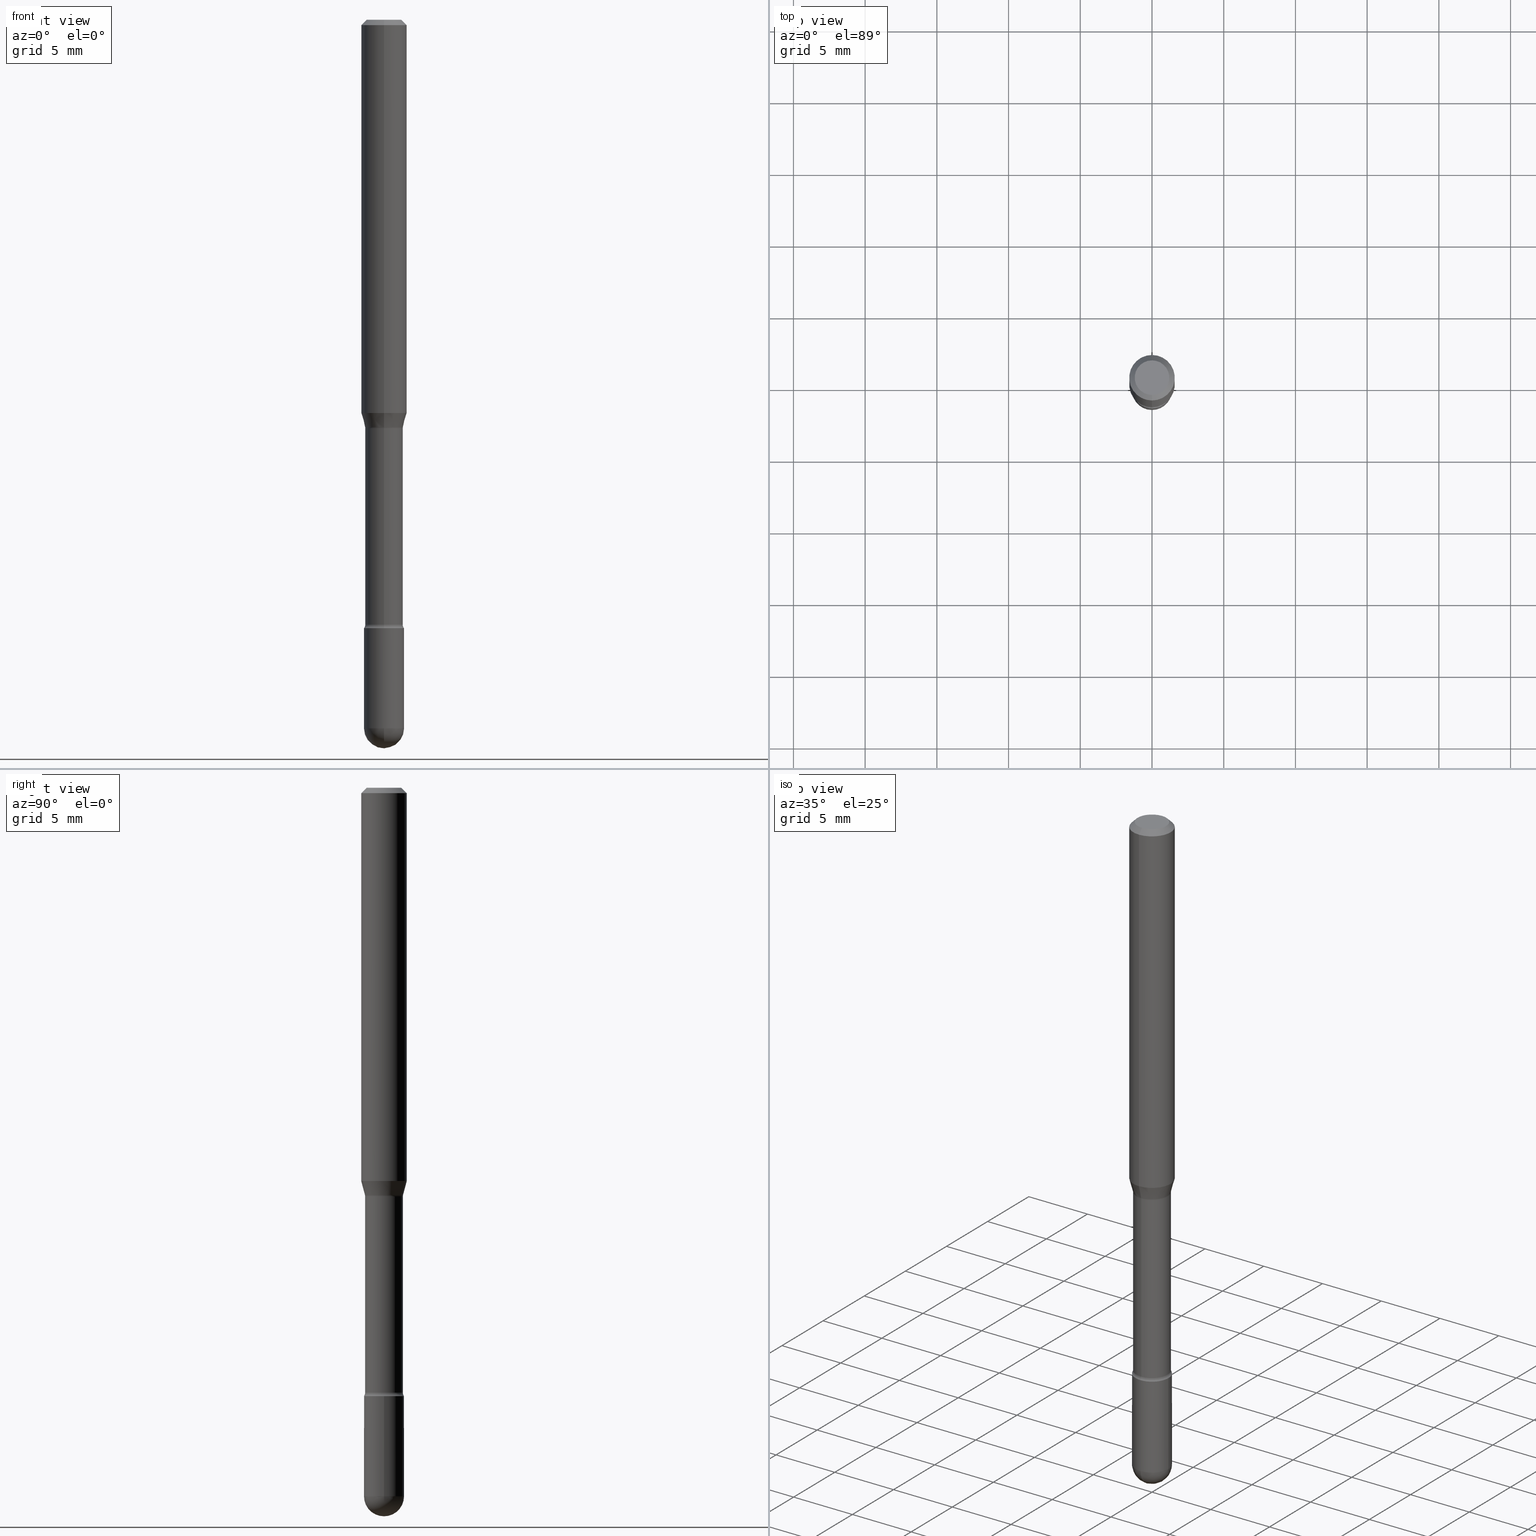
[diagram: canonical four-view strip — front | top / right | iso, engineering-drawing reading convention]
A machine part, canonical four-view strip (front | top / right | iso — engineering-drawing reading convention). The complete STEP part file that produces these views, byte-faithful:
ISO-10303-21;
HEADER;
FILE_DESCRIPTION (( 'STEP AP203' ),
    '1' );
FILE_NAME ('03775.STEP',
    '2024-04-09T20:25:13',
    ( '' ),
    ( '' ),
    'SwSTEP 2.0',
    'SolidWorks 2023',
    '' );
FILE_SCHEMA (( 'CONFIG_CONTROL_DESIGN' ));
ENDSEC;

DATA;
#1 = DIRECTION ( 'NONE',  ( -2.445468806185136597E-29, 3.491481338843145583E-15, 1.000000000000000000 ) ) ;
#2 = EDGE_CURVE ( 'NONE', #113, #246, #393, .T. ) ;
#3 = DIRECTION ( 'NONE',  ( -6.982962677686265133E-15, -1.000000000000000000, 3.491568880627540684E-15 ) ) ;
#4 = DIRECTION ( 'NONE',  ( 1.000000000000000000, -6.982962677686262766E-15, 0.000000000000000000 ) ) ;
#5 = CARTESIAN_POINT ( 'NONE',  ( -0.05500000000000000028, 3.907985046680551042E-16, -2.705414299640198362E-30 ) ) ;
#6 = VERTEX_POINT ( 'NONE', #441 ) ;
#7 = CARTESIAN_POINT ( 'NONE',  ( 4.893289319665516092E-29, -6.979594898988634750E-15, -2.000000000000000000 ) ) ;
#8 = ORGANIZATION ( 'UNSPECIFIED', 'UNSPECIFIED', '' ) ;
#9 = CYLINDRICAL_SURFACE ( 'NONE', #335, 0.05500000000000000028 ) ;
#10 = EDGE_CURVE ( 'NONE', #390, #157, #178, .T. ) ;
#11 = ORIENTED_EDGE ( 'NONE', *, *, #413, .T. ) ;
#12 = CARTESIAN_POINT ( 'NONE',  ( -4.657636106016465025E-16, -0.06670000000000392282, -1.121974787463810408 ) ) ;
#13 = DIRECTION ( 'NONE',  ( 2.445407676083819295E-29, -3.491568880627540684E-15, -1.000000000000000000 ) ) ;
#14 = EDGE_LOOP ( 'NONE', ( #30, #283, #460, #65 ) ) ;
#15 = DIRECTION ( 'NONE',  ( -2.445407676083819856E-29, 3.491568880627540289E-15, 1.000000000000000000 ) ) ;
#16 = CARTESIAN_POINT ( 'NONE',  ( 4.739320047520142042E-16, 0.06669999999999608187, -1.121974787463811074 ) ) ;
#17 = EDGE_CURVE ( 'NONE', #66, #246, #468, .T. ) ;
#18 = PERSON_AND_ORGANIZATION_ROLE ( 'classification_officer' ) ;
#19 = AXIS2_PLACEMENT_3D ( 'NONE', #26, #501, #150 ) ;
#20 = AXIS2_PLACEMENT_3D ( 'NONE', #67, #242, #28 ) ;
#21 = CARTESIAN_POINT ( 'NONE',  ( -3.610191704363525413E-16, -0.05170000000000391643, -1.121974787463810408 ) ) ;
#22 = COORDINATED_UNIVERSAL_TIME_OFFSET ( 5, 0, .BEHIND. ) ;
#23 = DIRECTION ( 'NONE',  ( -2.445407676083819856E-29, 3.491568880627540289E-15, 1.000000000000000000 ) ) ;
#24 = EDGE_CURVE ( 'NONE', #478, #147, #161, .T. ) ;
#25 = SECURITY_CLASSIFICATION_LEVEL ( 'unclassified' ) ;
#26 = CARTESIAN_POINT ( 'NONE',  ( 2.734191986442359264E-29, -3.903896984903434691E-15, -1.118092501787272930 ) ) ;
#27 = EDGE_LOOP ( 'NONE', ( #299, #495, #370, #483 ) ) ;
#28 = DIRECTION ( 'NONE',  ( 6.982962677686266711E-15, 1.000000000000000000, -4.966996352116838343E-15 ) ) ;
#29 = AXIS2_PLACEMENT_3D ( 'NONE', #167, #430, #334 ) ;
#30 = ORIENTED_EDGE ( 'NONE', *, *, #10, .F. ) ;
#31 = FACE_OUTER_BOUND ( 'NONE', #287, .T. ) ;
#32 = FACE_OUTER_BOUND ( 'NONE', #536, .T. ) ;
#33 = ADVANCED_FACE ( 'NONE', ( #341 ), #168, .F. ) ;
#34 = EDGE_CURVE ( 'NONE', #412, #555, #100, .T. ) ;
#35 = DIRECTION ( 'NONE',  ( -2.445407676083819856E-29, 3.491568880627540289E-15, 1.000000000000000000 ) ) ;
#36 = CIRCLE ( 'NONE', #546, 0.05221111260566397433 ) ;
#37 = AXIS2_PLACEMENT_3D ( 'NONE', #423, #472, #42 ) ;
#38 = CYLINDRICAL_SURFACE ( 'NONE', #29, 0.05500000000000000028 ) ;
#39 = EDGE_CURVE ( 'NONE', #83, #457, #446, .T. ) ;
#40 = DIRECTION ( 'NONE',  ( -2.445407676083819856E-29, 3.491568880627540289E-15, 1.000000000000000000 ) ) ;
#41 = ORIENTED_EDGE ( 'NONE', *, *, #515, .T. ) ;
#42 = DIRECTION ( 'NONE',  ( -6.982962677686263555E-15, -1.000000000000000000, 0.000000000000000000 ) ) ;
#43 = CIRCLE ( 'NONE', #435, 0.05500000000000000028 ) ;
#44 = DIRECTION ( 'NONE',  ( -2.445468806185136597E-29, 3.491481338843145583E-15, 1.000000000000000000 ) ) ;
#45 = DIRECTION ( 'NONE',  ( -6.982962677686266711E-15, -1.000000000000000000, 0.000000000000000000 ) ) ;
#46 = DIRECTION ( 'NONE',  ( 1.000000000000000000, -7.105427357601001070E-15, 4.926316580619742724E-29 ) ) ;
#47 = DIRECTION ( 'NONE',  ( -2.445407676083820136E-29, 3.491568880627540684E-15, 1.000000000000000000 ) ) ;
#48 = CARTESIAN_POINT ( 'NONE',  ( 4.756436828030090255E-29, -6.790931204049917095E-15, -1.944999999999999840 ) ) ;
#49 = CARTESIAN_POINT ( 'NONE',  ( -3.610191704363799542E-16, -0.05170000000000000984, 6.585875100196899420E-16 ) ) ;
#50 = CIRCLE ( 'NONE', #108, 0.05500000000000000028 ) ;
#51 = PLANE ( 'NONE',  #308 ) ;
#52 = ORIENTED_EDGE ( 'NONE', *, *, #232, .T. ) ;
#53 = DIRECTION ( 'NONE',  ( -2.445407676083819856E-29, 3.491568880627540289E-15, 1.000000000000000000 ) ) ;
#54 = ORIENTED_EDGE ( 'NONE', *, *, #2, .T. ) ;
#55 = ORIENTED_EDGE ( 'NONE', *, *, #310, .F. ) ;
#56 = CALENDAR_DATE ( 2024, 9, 4 ) ;
#57 = DIRECTION ( 'NONE',  ( -7.105427357601001070E-15, -1.000000000000000000, 0.000000000000000000 ) ) ;
#58 = DATE_AND_TIME ( #56, #190 ) ;
#59 = AXIS2_PLACEMENT_3D ( 'NONE', #549, #273, #537 ) ;
#60 = AXIS2_PLACEMENT_3D ( 'NONE', #12, #224, #45 ) ;
#61 = DIRECTION ( 'NONE',  ( -2.445407676083819856E-29, 3.491568880627540289E-15, 1.000000000000000000 ) ) ;
#62 = EDGE_CURVE ( 'NONE', #457, #83, #511, .T. ) ;
#63 = APPROVAL_DATE_TIME ( #58, #254 ) ;
#64 = SPHERICAL_SURFACE ( 'NONE', #20, 0.05500000000000004191 ) ;
#65 = ORIENTED_EDGE ( 'NONE', *, *, #72, .T. ) ;
#66 = VERTEX_POINT ( 'NONE', #188 ) ;
#67 = CARTESIAN_POINT ( 'NONE',  ( 4.756436828030090255E-29, -6.790931204049917095E-15, -1.944999999999999840 ) ) ;
#68 = CARTESIAN_POINT ( 'NONE',  ( -3.610191704363393772E-16, -0.05170000000000580381, -1.660613307291702423 ) ) ;
#69 = AXIS2_PLACEMENT_3D ( 'NONE', #48, #528, #185 ) ;
#70 = CC_DESIGN_APPROVAL ( #198, ( #127 ) ) ;
#71 = CARTESIAN_POINT ( 'NONE',  ( 4.083932906329177803E-29, -5.830773835868053056E-15, -1.669999999999999929 ) ) ;
#72 = EDGE_CURVE ( 'NONE', #139, #157, #274, .T. ) ;
#73 = DIRECTION ( 'NONE',  ( 4.937700262164548042E-15, 0.7071067811865451302, -0.7071067811865499042 ) ) ;
#74 = ORIENTED_EDGE ( 'NONE', *, *, #535, .T. ) ;
#75 = PLANE ( 'NONE',  #383 ) ;
#76 = ORIENTED_EDGE ( 'NONE', *, *, #488, .T. ) ;
#77 = AXIS2_PLACEMENT_3D ( 'NONE', #400, #347, #183 ) ;
#78 = APPROVAL_PERSON_ORGANIZATION ( #401, #198, #203 ) ;
#79 = LOCAL_TIME ( 16, 25, 13.00000000000000000, #499 ) ;
#80 = DIRECTION ( 'NONE',  ( -2.445407676083819856E-29, 3.491568880627540289E-15, 1.000000000000000000 ) ) ;
#81 = DIRECTION ( 'NONE',  ( -6.982962677686265922E-15, -1.000000000000000000, 3.491568880627540684E-15 ) ) ;
#82 = ORIENTED_EDGE ( 'NONE', *, *, #121, .T. ) ;
#83 = VERTEX_POINT ( 'NONE', #523 ) ;
#84 = CARTESIAN_POINT ( 'NONE',  ( 4.440892098500891416E-16, 0.06249999999999995143, -0.01500000000000030129 ) ) ;
#85 = AXIS2_PLACEMENT_3D ( 'NONE', #71, #381, #471 ) ;
#86 =( NAMED_UNIT ( * ) PLANE_ANGLE_UNIT ( ) SI_UNIT ( $, .RADIAN. ) );
#87 = ORIENTED_EDGE ( 'NONE', *, *, #163, .T. ) ;
#88 = ADVANCED_FACE ( 'NONE', ( #136 ), #51, .F. ) ;
#89 = DIRECTION ( 'NONE',  ( -6.982962677686266711E-15, -1.000000000000000000, 2.642019336232363246E-15 ) ) ;
#90 = CARTESIAN_POINT ( 'NONE',  ( -4.364351673553652919E-16, -0.06250000000000377476, -1.079693851278255456 ) ) ;
#91 = VERTEX_POINT ( 'NONE', #90 ) ;
#92 = CC_DESIGN_PERSON_AND_ORGANIZATION_ASSIGNMENT ( #276, #111, ( #127 ) ) ;
#93 = DIRECTION ( 'NONE',  ( -1.000000000000000000, 7.105427357601001070E-15, -4.926315508542082329E-29 ) ) ;
#94 = EDGE_CURVE ( 'NONE', #478, #336, #403, .T. ) ;
#95 = ORIENTED_EDGE ( 'NONE', *, *, #345, .T. ) ;
#96 = AXIS2_PLACEMENT_3D ( 'NONE', #313, #23, #149 ) ;
#97 = CARTESIAN_POINT ( 'NONE',  ( 4.060876528658069036E-29, -5.798145746495687902E-15, -1.660613307291702645 ) ) ;
#98 = CIRCLE ( 'NONE', #284, 0.06250000000000000000 ) ;
#99 = ADVANCED_FACE ( 'NONE', ( #219 ), #9, .T. ) ;
#100 = LINE ( 'NONE', #5, #365 ) ;
#101 = VERTEX_POINT ( 'NONE', #532 ) ;
#102 = APPROVAL_DATE_TIME ( #196, #429 ) ;
#103 = DIRECTION ( 'NONE',  ( 1.000000000000000000, -6.982962677686262766E-15, 0.000000000000000000 ) ) ;
#104 = EDGE_LOOP ( 'NONE', ( #297, #52, #491, #374 ) ) ;
#105 = EDGE_CURVE ( 'NONE', #316, #6, #211, .T. ) ;
#106 = CALENDAR_DATE ( 2024, 9, 4 ) ;
#107 = AXIS2_PLACEMENT_3D ( 'NONE', #525, #46, #138 ) ;
#108 = AXIS2_PLACEMENT_3D ( 'NONE', #379, #561, #126 ) ;
#109 = CARTESIAN_POINT ( 'NONE',  ( 3.668111514125750155E-31, -5.237353320941339203E-17, -0.01500000000000008271 ) ) ;
#110 = ADVANCED_FACE ( 'NONE', ( #282 ), #376, .F. ) ;
#111 = PERSON_AND_ORGANIZATION_ROLE ( 'creator' ) ;
#112 = FACE_OUTER_BOUND ( 'NONE', #380, .T. ) ;
#113 = VERTEX_POINT ( 'NONE', #277 ) ;
#114 = MANIFOLD_SOLID_BREP ( 'Body-Move/Copy2[2]', #521 ) ;
#115 = DIRECTION ( 'NONE',  ( -6.982962677686266711E-15, -1.000000000000000000, 2.616155696869698836E-15 ) ) ;
#116 = AXIS2_PLACEMENT_3D ( 'NONE', #327, #368, #402 ) ;
#117 = PRODUCT_DEFINITION_FORMATION_WITH_SPECIFIED_SOURCE ( 'ANY', '', #538, .NOT_KNOWN. ) ;
#118 = ORIENTED_EDGE ( 'NONE', *, *, #39, .F. ) ;
#119 = FACE_OUTER_BOUND ( 'NONE', #304, .T. ) ;
#120 = DIRECTION ( 'NONE',  ( 6.982962677686266711E-15, 1.000000000000000000, -4.966996352116838343E-15 ) ) ;
#121 = EDGE_CURVE ( 'NONE', #6, #316, #169, .T. ) ;
#122 = PRODUCT_RELATED_PRODUCT_CATEGORY ( 'detail', '', ( #538 ) ) ;
#123 = DIRECTION ( 'NONE',  ( -6.982962677686264344E-15, -1.000000000000000000, 3.491568880627541472E-15 ) ) ;
#124 = AXIS2_PLACEMENT_3D ( 'NONE', #210, #35, #81 ) ;
#125 = ORIENTED_EDGE ( 'NONE', *, *, #445, .T. ) ;
#126 = DIRECTION ( 'NONE',  ( 1.000000000000000000, -6.982962677686262766E-15, 0.000000000000000000 ) ) ;
#127 = PRODUCT_DEFINITION ( 'UNKNOWN', '', #117, #419 ) ;
#128 = CARTESIAN_POINT ( 'NONE',  ( -1.169113584055446105E-44, 1.669184350826100908E-30, 4.780733988912460139E-16 ) ) ;
#129 = VERTEX_POINT ( 'NONE', #459 ) ;
#130 = EDGE_CURVE ( 'NONE', #412, #147, #485, .T. ) ;
#131 = DIRECTION ( 'NONE',  ( -2.445407676083819856E-29, 3.491568880627540289E-15, 1.000000000000000000 ) ) ;
#132 = AXIS2_PLACEMENT_3D ( 'NONE', #372, #194, #201 ) ;
#133 = VECTOR ( 'NONE', #557, 39.37007874015748143 ) ;
#134 = CC_DESIGN_SECURITY_CLASSIFICATION ( #547, ( #117 ) ) ;
#135 =( NAMED_UNIT ( * ) SI_UNIT ( $, .STERADIAN. ) SOLID_ANGLE_UNIT ( ) );
#136 = FACE_OUTER_BOUND ( 'NONE', #466, .T. ) ;
#137 =( CONVERSION_BASED_UNIT ( 'INCH', #476 ) LENGTH_UNIT ( ) NAMED_UNIT ( #422 ) );
#138 = DIRECTION ( 'NONE',  ( 7.105427357600997914E-15, 1.000000000000000000, 0.000000000000000000 ) ) ;
#139 = VERTEX_POINT ( 'NONE', #21 ) ;
#140 = ORIENTED_EDGE ( 'NONE', *, *, #72, .F. ) ;
#141 = ADVANCED_FACE ( 'NONE', ( #197 ), #530, .T. ) ;
#142 = CARTESIAN_POINT ( 'NONE',  ( 3.673505943879717674E-16, 0.05170000000000000984, 2.975592877628021845E-16 ) ) ;
#143 = DIRECTION ( 'NONE',  ( -2.445468806185136597E-29, 3.491481338843145583E-15, 1.000000000000000000 ) ) ;
#144 = AXIS2_PLACEMENT_3D ( 'NONE', #359, #504, #552 ) ;
#145 = TOROIDAL_SURFACE ( 'NONE', #162, 0.06669999999999999540, 0.01499999999999998904 ) ;
#146 = DIRECTION ( 'NONE',  ( -2.445407676083820136E-29, 3.491568880627540684E-15, 1.000000000000000000 ) ) ;
#147 = VERTEX_POINT ( 'NONE', #544 ) ;
#148 = PERSON_AND_ORGANIZATION ( #517, #8 ) ;
#149 = DIRECTION ( 'NONE',  ( -6.982962677686266711E-15, -1.000000000000000000, 3.491568880627540684E-15 ) ) ;
#150 = DIRECTION ( 'NONE',  ( -6.982962677686266711E-15, -1.000000000000000000, 2.616155696869698836E-15 ) ) ;
#151 = CLOSED_SHELL ( 'NONE', ( #99, #239, #360, #294, #438 ) ) ;
#152 = VECTOR ( 'NONE', #513, 39.37007874015748143 ) ;
#153 = CARTESIAN_POINT ( 'NONE',  ( 2.023108341464020136E-45, -2.889442947806254764E-31, -8.274287383678662099E-17 ) ) ;
#154 = ORIENTED_EDGE ( 'NONE', *, *, #541, .F. ) ;
#155 = DIRECTION ( 'NONE',  ( -2.445407676083819856E-29, 3.491568880627540289E-15, 1.000000000000000000 ) ) ;
#156 = VERTEX_POINT ( 'NONE', #68 ) ;
#157 = VERTEX_POINT ( 'NONE', #229 ) ;
#158 = CARTESIAN_POINT ( 'NONE',  ( 2.734191986442359264E-29, -3.903896984903434691E-15, -1.118092501787272930 ) ) ;
#159 = ORIENTED_EDGE ( 'NONE', *, *, #2, .F. ) ;
#160 = DIRECTION ( 'NONE',  ( -2.445468806185136877E-29, 3.491481338843145188E-15, 1.000000000000000000 ) ) ;
#161 = CIRCLE ( 'NONE', #545, 0.05500000000000004191 ) ;
#162 = AXIS2_PLACEMENT_3D ( 'NONE', #184, #386, #479 ) ;
#163 = EDGE_CURVE ( 'NONE', #550, #390, #556, .T. ) ;
#164 = CARTESIAN_POINT ( 'NONE',  ( 4.075357388645938693E-16, 0.05221111260566007467, -1.118092501787272930 ) ) ;
#165 = ORIENTED_EDGE ( 'NONE', *, *, #306, .T. ) ;
#166 = CARTESIAN_POINT ( 'NONE',  ( 4.756436828030090255E-29, -6.790931204049917095E-15, -1.944999999999999840 ) ) ;
#167 = CARTESIAN_POINT ( 'NONE',  ( 0.000000000000000000, 0.000000000000000000, 0.000000000000000000 ) ) ;
#168 = TOROIDAL_SURFACE ( 'NONE', #292, 0.06670000000000006479, 0.01500000000000006710 ) ;
#169 = CIRCLE ( 'NONE', #486, 0.04749999999999999362 ) ;
#170 = AXIS2_PLACEMENT_3D ( 'NONE', #97, #392, #399 ) ;
#171 = FACE_OUTER_BOUND ( 'NONE', #421, .T. ) ;
#172 = EDGE_CURVE ( 'NONE', #555, #236, #43, .T. ) ;
#173 = DIRECTION ( 'NONE',  ( 1.000000000000000000, -6.982962677686262766E-15, 0.000000000000000000 ) ) ;
#174 = DIRECTION ( 'NONE',  ( -6.982962677686265922E-15, -1.000000000000000000, 3.483106191921935554E-15 ) ) ;
#175 = DIRECTION ( 'NONE',  ( -6.982962677686264344E-15, -1.000000000000000000, 3.491568880627541472E-15 ) ) ;
#176 = ORIENTED_EDGE ( 'NONE', *, *, #62, .T. ) ;
#177 = DIRECTION ( 'NONE',  ( -6.982962677686265922E-15, -1.000000000000000000, 3.483106191921935554E-15 ) ) ;
#178 = CIRCLE ( 'NONE', #352, 0.01499999999999998557 ) ;
#179 = ORIENTED_EDGE ( 'NONE', *, *, #439, .T. ) ;
#180 = ADVANCED_FACE ( 'NONE', ( #414 ), #506, .T. ) ;
#181 = AXIS2_PLACEMENT_3D ( 'NONE', #548, #367, #410 ) ;
#182 = CARTESIAN_POINT ( 'NONE',  ( -0.05500000000000000028, -5.920054015290930021E-15, -1.669999999999999929 ) ) ;
#183 = DIRECTION ( 'NONE',  ( -6.982962677686266711E-15, -1.000000000000000000, 4.966996352116842287E-15 ) ) ;
#184 = CARTESIAN_POINT ( 'NONE',  ( 2.743754344068947711E-29, -3.917354033082399546E-15, -1.121974787463810630 ) ) ;
#185 = DIRECTION ( 'NONE',  ( 6.982962677686267499E-15, 1.000000000000000000, 0.000000000000000000 ) ) ;
#186 = ADVANCED_FACE ( 'NONE', ( #31 ), #475, .T. ) ;
#187 = LINE ( 'NONE', #49, #564 ) ;
#188 = CARTESIAN_POINT ( 'NONE',  ( 3.790745495280543333E-16, 0.05169999999999420892, -1.660613307291702867 ) ) ;
#189 = ORIENTED_EDGE ( 'NONE', *, *, #24, .F. ) ;
#190 = LOCAL_TIME ( 16, 25, 13.00000000000000000, #22 ) ;
#191 = PERSON_AND_ORGANIZATION_ROLE ( 'creator' ) ;
#192 = DIRECTION ( 'NONE',  ( 6.982962677686265922E-15, 1.000000000000000000, -3.483106191921935554E-15 ) ) ;
#193 = APPLICATION_PROTOCOL_DEFINITION ( 'international standard', 'config_control_design', 1994, #214 ) ;
#194 = DIRECTION ( 'NONE',  ( -2.445468806185136597E-29, 3.491481338843145583E-15, 1.000000000000000000 ) ) ;
#195 = ORIENTED_EDGE ( 'NONE', *, *, #363, .T. ) ;
#196 = DATE_AND_TIME ( #543, #470 ) ;
#197 = FACE_OUTER_BOUND ( 'NONE', #104, .T. ) ;
#198 = APPROVAL ( #361, 'UNSPECIFIED' ) ;
#199 = AXIS2_PLACEMENT_3D ( 'NONE', #302, #343, #351 ) ;
#200 = AXIS2_PLACEMENT_3D ( 'NONE', #109, #496, #325 ) ;
#201 = DIRECTION ( 'NONE',  ( 1.000000000000000000, -6.982962677686262766E-15, 0.000000000000000000 ) ) ;
#202 = ORIENTED_EDGE ( 'NONE', *, *, #172, .F. ) ;
#203 = APPROVAL_ROLE ( '' ) ;
#204 = ADVANCED_FACE ( 'NONE', ( #357 ), #497, .F. ) ;
#205 = LINE ( 'NONE', #428, #448 ) ;
#206 = CARTESIAN_POINT ( 'NONE',  ( 4.756436828030090255E-29, -6.790931204049917095E-15, -1.944999999999999840 ) ) ;
#207 = CC_DESIGN_PERSON_AND_ORGANIZATION_ASSIGNMENT ( #270, #18, ( #547 ) ) ;
#208 = CIRCLE ( 'NONE', #344, 0.05500000000000000028 ) ;
#209 = DIRECTION ( 'NONE',  ( -2.445407676083819295E-29, 3.491568880627540684E-15, 1.000000000000000000 ) ) ;
#210 = CARTESIAN_POINT ( 'NONE',  ( -1.169113584055446105E-44, 1.669184350826100908E-30, 4.780733988912460139E-16 ) ) ;
#211 = CIRCLE ( 'NONE', #96, 0.04749999999999999362 ) ;
#212 = LOCAL_TIME ( 16, 25, 13.00000000000000000, #539 ) ;
#213 = DIRECTION ( 'NONE',  ( -2.445407676083819856E-29, 3.491568880627540289E-15, 1.000000000000000000 ) ) ;
#214 = APPLICATION_CONTEXT ( 'configuration controlled 3d designs of mechanical parts and assemblies' ) ;
#215 = CARTESIAN_POINT ( 'NONE',  ( 4.756436828030090255E-29, -6.790931204049917095E-15, -1.944999999999999840 ) ) ;
#216 = EDGE_LOOP ( 'NONE', ( #41, #354, #526, #240, #74 ) ) ;
#217 = CARTESIAN_POINT ( 'NONE',  ( -3.645882506857991305E-16, -0.05221111260566788093, -1.118092501787272708 ) ) ;
#218 = ADVANCED_FACE ( 'NONE', ( #112 ), #315, .T. ) ;
#219 = FACE_OUTER_BOUND ( 'NONE', #216, .T. ) ;
#220 = VECTOR ( 'NONE', #146, 39.37007874015748143 ) ;
#221 = LINE ( 'NONE', #350, #220 ) ;
#222 = DIRECTION ( 'NONE',  ( -2.445407676083819856E-29, 3.491568880627540289E-15, 1.000000000000000000 ) ) ;
#223 = ADVANCED_FACE ( 'NONE', ( #279 ), #425, .T. ) ;
#224 = DIRECTION ( 'NONE',  ( -1.000000000000000000, 6.982962677686265922E-15, -4.883557194083112340E-29 ) ) ;
#225 = ORIENTED_EDGE ( 'NONE', *, *, #524, .T. ) ;
#226 = APPLICATION_CONTEXT ( 'configuration controlled 3d designs of mechanical parts and assemblies' ) ;
#227 = ORIENTED_EDGE ( 'NONE', *, *, #558, .F. ) ;
#228 = APPROVAL_STATUS ( 'not_yet_approved' ) ;
#229 = CARTESIAN_POINT ( 'NONE',  ( 3.673505943880124923E-16, 0.05169999999999608242, -1.121974787463810630 ) ) ;
#230 = ORIENTED_EDGE ( 'NONE', *, *, #121, .F. ) ;
#231 = AXIS2_PLACEMENT_3D ( 'NONE', #245, #411, #192 ) ;
#232 = EDGE_CURVE ( 'NONE', #390, #550, #36, .T. ) ;
#233 = VECTOR ( 'NONE', #73, 39.37007874015748143 ) ;
#234 = CALENDAR_DATE ( 2024, 9, 4 ) ;
#235 = DIRECTION ( 'NONE',  ( -6.982962677686266711E-15, -1.000000000000000000, 2.616155696869698836E-15 ) ) ;
#236 = VERTEX_POINT ( 'NONE', #456 ) ;
#237 = MECHANICAL_CONTEXT ( 'NONE', #226, 'mechanical' ) ;
#238 = FACE_OUTER_BOUND ( 'NONE', #278, .T. ) ;
#239 = ADVANCED_FACE ( 'NONE', ( #408 ), #64, .T. ) ;
#240 = ORIENTED_EDGE ( 'NONE', *, *, #413, .F. ) ;
#241 = ORIENTED_EDGE ( 'NONE', *, *, #418, .F. ) ;
#242 = DIRECTION ( 'NONE',  ( -1.000000000000000000, 6.982962677686266711E-15, -4.883557194083112901E-29 ) ) ;
#243 = APPROVAL_ROLE ( '' ) ;
#244 = CIRCLE ( 'NONE', #300, 0.05500000000000000028 ) ;
#245 = CARTESIAN_POINT ( 'NONE',  ( 3.668111514125750155E-31, -5.237353320941339203E-17, -0.01500000000000008271 ) ) ;
#246 = VERTEX_POINT ( 'NONE', #503 ) ;
#247 = LINE ( 'NONE', #288, #152 ) ;
#248 = ORIENTED_EDGE ( 'NONE', *, *, #62, .F. ) ;
#249 = DIRECTION ( 'NONE',  ( -6.982962677686264344E-15, -1.000000000000000000, 5.284038672464724914E-15 ) ) ;
#250 = CARTESIAN_POINT ( 'NONE',  ( 4.060876528658069036E-29, -5.798145746495687902E-15, -1.660613307291702645 ) ) ;
#251 = AXIS2_PLACEMENT_3D ( 'NONE', #540, #417, #494 ) ;
#252 = ORIENTED_EDGE ( 'NONE', *, *, #310, .T. ) ;
#253 = FACE_OUTER_BOUND ( 'NONE', #269, .T. ) ;
#254 = APPROVAL ( #228, 'UNSPECIFIED' ) ;
#255 = SPHERICAL_SURFACE ( 'NONE', #507, 0.05500000000000004191 ) ;
#256 = ORIENTED_EDGE ( 'NONE', *, *, #524, .F. ) ;
#257 = DIRECTION ( 'NONE',  ( -6.982962677686265922E-15, -1.000000000000000000, 4.370956789862821150E-15 ) ) ;
#258 = AXIS2_PLACEMENT_3D ( 'NONE', #128, #40, #123 ) ;
#259 = ORIENTED_EDGE ( 'NONE', *, *, #17, .T. ) ;
#260 = ORIENTED_EDGE ( 'NONE', *, *, #450, .F. ) ;
#261 = CC_DESIGN_DATE_AND_TIME_ASSIGNMENT ( #534, #281, ( #547 ) ) ;
#262 = DIRECTION ( 'NONE',  ( -2.445407676083820136E-29, 3.491568880627540684E-15, 1.000000000000000000 ) ) ;
#263 = ORIENTED_EDGE ( 'NONE', *, *, #172, .T. ) ;
#264 = DIRECTION ( 'NONE',  ( -2.445407676083819856E-29, 3.491568880627540289E-15, 1.000000000000000000 ) ) ;
#265 = AXIS2_PLACEMENT_3D ( 'NONE', #519, #131, #177 ) ;
#266 = VECTOR ( 'NONE', #47, 39.37007874015748143 ) ;
#267 = ADVANCED_BREP_SHAPE_REPRESENTATION ( '03775', ( #298, #114, #181 ), #275 ) ;
#268 = CARTESIAN_POINT ( 'NONE',  ( 2.743685757636514804E-29, -3.917452252757339615E-15, -1.121974787463810630 ) ) ;
#269 = EDGE_LOOP ( 'NONE', ( #289, #563, #165, #11, #202 ) ) ;
#270 = PERSON_AND_ORGANIZATION ( #517, #8 ) ;
#271 = ORIENTED_EDGE ( 'NONE', *, *, #445, .F. ) ;
#272 = PERSON_AND_ORGANIZATION ( #517, #8 ) ;
#273 = DIRECTION ( 'NONE',  ( -2.445407676083819856E-29, 3.491568880627540289E-15, 1.000000000000000000 ) ) ;
#274 = CIRCLE ( 'NONE', #199, 0.05169999999999999596 ) ;
#275 =( GEOMETRIC_REPRESENTATION_CONTEXT ( 3 ) GLOBAL_UNCERTAINTY_ASSIGNED_CONTEXT ( ( #493 ) ) GLOBAL_UNIT_ASSIGNED_CONTEXT ( ( #137, #86, #135 ) ) REPRESENTATION_CONTEXT ( 'NONE', 'WORKASPACE' ) );
#276 = PERSON_AND_ORGANIZATION ( #517, #8 ) ;
#277 = CARTESIAN_POINT ( 'NONE',  ( -3.840629472727041611E-16, -0.05500000000000587752, -1.669999999999999707 ) ) ;
#278 = EDGE_LOOP ( 'NONE', ( #189, #424, #318, #301 ) ) ;
#279 = FACE_OUTER_BOUND ( 'NONE', #280, .T. ) ;
#280 = EDGE_LOOP ( 'NONE', ( #431, #230, #303, #176 ) ) ;
#281 = DATE_TIME_ROLE ( 'classification_date' ) ;
#282 = FACE_OUTER_BOUND ( 'NONE', #514, .T. ) ;
#283 = ORIENTED_EDGE ( 'NONE', *, *, #163, .F. ) ;
#284 = AXIS2_PLACEMENT_3D ( 'NONE', #436, #213, #518 ) ;
#285 = CC_DESIGN_APPROVAL ( #429, ( #547 ) ) ;
#286 = DIRECTION ( 'NONE',  ( -2.445468806185136597E-29, 3.491481338843145583E-15, 1.000000000000000000 ) ) ;
#287 = EDGE_LOOP ( 'NONE', ( #394, #533, #409, #241 ) ) ;
#288 = CARTESIAN_POINT ( 'NONE',  ( -3.645882506857991305E-16, -0.05221111260566788093, -1.118092501787272708 ) ) ;
#289 = ORIENTED_EDGE ( 'NONE', *, *, #34, .F. ) ;
#290 = DIRECTION ( 'NONE',  ( -4.851104656540964275E-15, -0.7071067811865500152, -0.7071067811865450192 ) ) ;
#291 = LINE ( 'NONE', #375, #133 ) ;
#292 = AXIS2_PLACEMENT_3D ( 'NONE', #447, #264, #3 ) ;
#293 = VECTOR ( 'NONE', #432, 39.37007874015748143 ) ;
#294 = ADVANCED_FACE ( 'NONE', ( #238 ), #255, .T. ) ;
#295 = CARTESIAN_POINT ( 'NONE',  ( 4.440892098500625669E-16, 0.06250000000000000000, 2.598503438520248198E-16 ) ) ;
#296 = PLANE ( 'NONE',  #85 ) ;
#297 = ORIENTED_EDGE ( 'NONE', *, *, #345, .F. ) ;
#298 = MANIFOLD_SOLID_BREP ( 'Body-Move/Copy2[1]', #151 ) ;
#299 = ORIENTED_EDGE ( 'NONE', *, *, #94, .F. ) ;
#300 = AXIS2_PLACEMENT_3D ( 'NONE', #397, #53, #440 ) ;
#301 = ORIENTED_EDGE ( 'NONE', *, *, #306, .F. ) ;
#302 = CARTESIAN_POINT ( 'NONE',  ( 2.743685757636514804E-29, -3.917452252757339615E-15, -1.121974787463810630 ) ) ;
#303 = ORIENTED_EDGE ( 'NONE', *, *, #418, .T. ) ;
#304 = EDGE_LOOP ( 'NONE', ( #154, #388, #464, #449 ) ) ;
#305 =( LENGTH_UNIT ( ) NAMED_UNIT ( * ) SI_UNIT ( $, .METRE. ) );
#306 = EDGE_CURVE ( 'NONE', #147, #101, #208, .T. ) ;
#307 = DIRECTION ( 'NONE',  ( 1.000000000000000000, -6.982962677686266711E-15, 4.876176775795935793E-29 ) ) ;
#308 = AXIS2_PLACEMENT_3D ( 'NONE', #480, #13, #398 ) ;
#309 = PERSON_AND_ORGANIZATION ( #517, #8 ) ;
#310 = EDGE_CURVE ( 'NONE', #129, #457, #559, .T. ) ;
#311 = ORIENTED_EDGE ( 'NONE', *, *, #439, .F. ) ;
#312 = APPROVAL_ROLE ( '' ) ;
#313 = CARTESIAN_POINT ( 'NONE',  ( 2.023108341464020136E-45, -2.889442947806254764E-31, -8.274287383678662099E-17 ) ) ;
#314 = APPLICATION_PROTOCOL_DEFINITION ( 'international standard', 'config_control_design', 1994, #226 ) ;
#315 = CYLINDRICAL_SURFACE ( 'NONE', #59, 0.06250000000000000000 ) ;
#316 = VERTEX_POINT ( 'NONE', #333 ) ;
#317 = ADVANCED_FACE ( 'NONE', ( #382 ), #75, .F. ) ;
#318 = ORIENTED_EDGE ( 'NONE', *, *, #535, .F. ) ;
#319 = LOCAL_TIME ( 16, 25, 13.00000000000000000, #324 ) ;
#320 = PRODUCT_DEFINITION_SHAPE ( 'NONE', 'NONE',  #127 ) ;
#321 = DATE_AND_TIME ( #106, #212 ) ;
#322 = CARTESIAN_POINT ( 'NONE',  ( 4.083932906329177803E-29, -5.830773835868053056E-15, -1.669999999999999929 ) ) ;
#323 = EDGE_LOOP ( 'NONE', ( #125, #332, #140, #562 ) ) ;
#324 = COORDINATED_UNIVERSAL_TIME_OFFSET ( 5, 0, .BEHIND. ) ;
#325 = DIRECTION ( 'NONE',  ( 6.982962677686265922E-15, 1.000000000000000000, -3.483106191921935554E-15 ) ) ;
#326 = EDGE_CURVE ( 'NONE', #236, #555, #50, .T. ) ;
#327 = CARTESIAN_POINT ( 'NONE',  ( 2.743754344068947711E-29, -3.917354033082399546E-15, -1.121974787463810630 ) ) ;
#328 = ORIENTED_EDGE ( 'NONE', *, *, #363, .F. ) ;
#329 = LINE ( 'NONE', #509, #426 ) ;
#330 = ADVANCED_FACE ( 'NONE', ( #119 ), #516, .T. ) ;
#331 = DIRECTION ( 'NONE',  ( -2.445468806185136597E-29, 3.491481338843145583E-15, 1.000000000000000000 ) ) ;
#332 = ORIENTED_EDGE ( 'NONE', *, *, #541, .T. ) ;
#333 = CARTESIAN_POINT ( 'NONE',  ( -3.773273898774340269E-16, -0.04749999999999999362, 8.310664799302154471E-17 ) ) ;
#334 = DIRECTION ( 'NONE',  ( 1.000000000000000000, -6.982962677686266711E-15, 4.876176775795935793E-29 ) ) ;
#335 = AXIS2_PLACEMENT_3D ( 'NONE', #349, #143, #307 ) ;
#336 = VERTEX_POINT ( 'NONE', #420 ) ;
#337 = CYLINDRICAL_SURFACE ( 'NONE', #124, 0.06250000000000000000 ) ;
#338 = CC_DESIGN_PERSON_AND_ORGANIZATION_ASSIGNMENT ( #358, #191, ( #117 ) ) ;
#339 = ORIENTED_EDGE ( 'NONE', *, *, #558, .T. ) ;
#340 = CARTESIAN_POINT ( 'NONE',  ( 2.640291631736349260E-29, -3.769825451728058184E-15, -1.079693851278255678 ) ) ;
#341 = FACE_OUTER_BOUND ( 'NONE', #364, .T. ) ;
#342 = CARTESIAN_POINT ( 'NONE',  ( 4.756436828030090255E-29, -6.790931204049917095E-15, -1.944999999999999840 ) ) ;
#343 = DIRECTION ( 'NONE',  ( -2.445407676083819856E-29, 3.491568880627540289E-15, 1.000000000000000000 ) ) ;
#344 = AXIS2_PLACEMENT_3D ( 'NONE', #206, #331, #508 ) ;
#345 = EDGE_CURVE ( 'NONE', #390, #129, #291, .T. ) ;
#346 = DIRECTION ( 'NONE',  ( -2.445407676083819856E-29, 3.491568880627540289E-15, 1.000000000000000000 ) ) ;
#347 = DIRECTION ( 'NONE',  ( -2.445407676083819856E-29, 3.491568880627540289E-15, 1.000000000000000000 ) ) ;
#348 = LINE ( 'NONE', #142, #266 ) ;
#349 = CARTESIAN_POINT ( 'NONE',  ( 0.000000000000000000, 0.000000000000000000, 0.000000000000000000 ) ) ;
#350 = CARTESIAN_POINT ( 'NONE',  ( -4.364351673553916201E-16, -0.06250000000000000000, 6.962964539304673560E-16 ) ) ;
#351 = DIRECTION ( 'NONE',  ( -6.982962677686266711E-15, -1.000000000000000000, 2.642019336232363246E-15 ) ) ;
#352 = AXIS2_PLACEMENT_3D ( 'NONE', #16, #482, #487 ) ;
#353 = AXIS2_PLACEMENT_3D ( 'NONE', #474, #1, #173 ) ;
#354 = ORIENTED_EDGE ( 'NONE', *, *, #34, .T. ) ;
#355 = ORIENTED_EDGE ( 'NONE', *, *, #434, .F. ) ;
#356 = APPROVAL_DATE_TIME ( #502, #198 ) ;
#357 = FACE_OUTER_BOUND ( 'NONE', #391, .T. ) ;
#358 = PERSON_AND_ORGANIZATION ( #517, #8 ) ;
#359 = CARTESIAN_POINT ( 'NONE',  ( 2.734191986442359264E-29, -3.903896984903434691E-15, -1.118092501787272930 ) ) ;
#360 = ADVANCED_FACE ( 'NONE', ( #171 ), #296, .T. ) ;
#361 = APPROVAL_STATUS ( 'not_yet_approved' ) ;
#362 = DIRECTION ( 'NONE',  ( -2.445407676083819856E-29, 3.491568880627540289E-15, 1.000000000000000000 ) ) ;
#363 = EDGE_CURVE ( 'NONE', #156, #113, #512, .T. ) ;
#364 = EDGE_LOOP ( 'NONE', ( #355, #259, #179, #328 ) ) ;
#365 = VECTOR ( 'NONE', #451, 39.37007874015748143 ) ;
#366 = AXIS2_PLACEMENT_3D ( 'NONE', #268, #527, #89 ) ;
#367 = DIRECTION ( 'NONE',  ( 0.000000000000000000, 0.000000000000000000, 1.000000000000000000 ) ) ;
#368 = DIRECTION ( 'NONE',  ( -2.445407676083819856E-29, 3.491568880627540289E-15, 1.000000000000000000 ) ) ;
#369 = ORIENTED_EDGE ( 'NONE', *, *, #542, .T. ) ;
#370 = ORIENTED_EDGE ( 'NONE', *, *, #130, .F. ) ;
#371 = DATE_TIME_ROLE ( 'creation_date' ) ;
#372 = CARTESIAN_POINT ( 'NONE',  ( 4.756436828030090255E-29, -6.790931204049917095E-15, -1.944999999999999840 ) ) ;
#373 = EDGE_LOOP ( 'NONE', ( #87, #95, #227, #505 ) ) ;
#374 = ORIENTED_EDGE ( 'NONE', *, *, #542, .F. ) ;
#375 = CARTESIAN_POINT ( 'NONE',  ( 3.709822678790986464E-16, 0.05221111260566007467, -1.118092501787272930 ) ) ;
#376 = TOROIDAL_SURFACE ( 'NONE', #116, 0.06669999999999999540, 0.01499999999999998904 ) ;
#377 = CIRCLE ( 'NONE', #522, 0.06250000000000000000 ) ;
#378 = DIRECTION ( 'NONE',  ( -6.982962677686265922E-15, -1.000000000000000000, 3.491568880627540684E-15 ) ) ;
#379 = CARTESIAN_POINT ( 'NONE',  ( 4.083932906329177803E-29, -5.830773835868053056E-15, -1.669999999999999929 ) ) ;
#380 = EDGE_LOOP ( 'NONE', ( #339, #252, #118, #256 ) ) ;
#381 = DIRECTION ( 'NONE',  ( -2.438088387897960049E-29, 3.491481338843145188E-15, 1.000000000000000000 ) ) ;
#382 = FACE_OUTER_BOUND ( 'NONE', #442, .T. ) ;
#383 = AXIS2_PLACEMENT_3D ( 'NONE', #566, #209, #378 ) ;
#384 = CARTESIAN_POINT ( 'NONE',  ( -1.169113584055446105E-44, 1.669184350826100908E-30, 4.780733988912460139E-16 ) ) ;
#385 = CARTESIAN_POINT ( 'NONE',  ( 3.668111514125750155E-31, -5.237353320941339203E-17, -0.01500000000000008271 ) ) ;
#386 = DIRECTION ( 'NONE',  ( -2.445407676083819856E-29, 3.491568880627540289E-15, 1.000000000000000000 ) ) ;
#387 = ADVANCED_FACE ( 'NONE', ( #32 ), #337, .T. ) ;
#388 = ORIENTED_EDGE ( 'NONE', *, *, #434, .T. ) ;
#389 = ORIENTED_EDGE ( 'NONE', *, *, #105, .T. ) ;
#390 = VERTEX_POINT ( 'NONE', #164 ) ;
#391 = EDGE_LOOP ( 'NONE', ( #553, #271, #195, #54 ) ) ;
#392 = DIRECTION ( 'NONE',  ( -2.445407676083819856E-29, 3.491568880627540289E-15, 1.000000000000000000 ) ) ;
#393 = CIRCLE ( 'NONE', #77, 0.05500000000000000028 ) ;
#394 = ORIENTED_EDGE ( 'NONE', *, *, #105, .F. ) ;
#395 = CIRCLE ( 'NONE', #170, 0.05170000000000000984 ) ;
#396 = EDGE_CURVE ( 'NONE', #550, #91, #247, .T. ) ;
#397 = CARTESIAN_POINT ( 'NONE',  ( 4.083830819059979171E-29, -5.830920030647992129E-15, -1.669999999999999929 ) ) ;
#398 = DIRECTION ( 'NONE',  ( 6.982962677686265922E-15, 1.000000000000000000, -3.491568880627540684E-15 ) ) ;
#399 = DIRECTION ( 'NONE',  ( -6.982962677686264344E-15, -1.000000000000000000, 5.284038672464724914E-15 ) ) ;
#400 = CARTESIAN_POINT ( 'NONE',  ( 4.083830819059979171E-29, -5.830920030647992129E-15, -1.669999999999999929 ) ) ;
#401 = PERSON_AND_ORGANIZATION ( #517, #8 ) ;
#402 = DIRECTION ( 'NONE',  ( -6.982962677686265133E-15, -1.000000000000000000, 3.491568880627540684E-15 ) ) ;
#403 = CIRCLE ( 'NONE', #69, 0.05500000000000004191 ) ;
#404 = AXIS2_PLACEMENT_3D ( 'NONE', #250, #80, #249 ) ;
#405 = APPROVAL_PERSON_ORGANIZATION ( #148, #429, #312 ) ;
#406 = SHAPE_DEFINITION_REPRESENTATION ( #320, #267 ) ;
#407 = CC_DESIGN_PERSON_AND_ORGANIZATION_ASSIGNMENT ( #272, #490, ( #117 ) ) ;
#408 = FACE_OUTER_BOUND ( 'NONE', #27, .T. ) ;
#409 = ORIENTED_EDGE ( 'NONE', *, *, #39, .T. ) ;
#410 = DIRECTION ( 'NONE',  ( 1.000000000000000000, 0.000000000000000000, 0.000000000000000000 ) ) ;
#411 = DIRECTION ( 'NONE',  ( 2.445407676083819856E-29, -3.491568880627540289E-15, -1.000000000000000000 ) ) ;
#412 = VERTEX_POINT ( 'NONE', #554 ) ;
#413 = EDGE_CURVE ( 'NONE', #101, #236, #205, .T. ) ;
#414 = FACE_OUTER_BOUND ( 'NONE', #373, .T. ) ;
#415 = AXIS2_PLACEMENT_3D ( 'NONE', #385, #222, #174 ) ;
#416 = EDGE_CURVE ( 'NONE', #316, #83, #329, .T. ) ;
#417 = DIRECTION ( 'NONE',  ( -2.445407676083819856E-29, 3.491568880627540289E-15, 1.000000000000000000 ) ) ;
#418 = EDGE_CURVE ( 'NONE', #6, #457, #467, .T. ) ;
#419 = DESIGN_CONTEXT ( 'detailed design', #214, 'design' ) ;
#420 = CARTESIAN_POINT ( 'NONE',  ( 3.840629472727923656E-16, 0.05499999999999323486, -1.945000000000000062 ) ) ;
#421 = EDGE_LOOP ( 'NONE', ( #433, #263 ) ) ;
#422 = DIMENSIONAL_EXPONENTS ( 1.000000000000000000, 0.000000000000000000, 0.000000000000000000, 0.000000000000000000, 0.000000000000000000, 0.000000000000000000, 0.000000000000000000 ) ;
#423 = CARTESIAN_POINT ( 'NONE',  ( -4.657636106016338808E-16, -0.06670000000000586571, -1.660613307291702423 ) ) ;
#424 = ORIENTED_EDGE ( 'NONE', *, *, #94, .T. ) ;
#425 = CONICAL_SURFACE ( 'NONE', #200, 0.06250000000000000000, 0.7853981633974483900 ) ;
#426 = VECTOR ( 'NONE', #290, 39.37007874015748143 ) ;
#427 = CC_DESIGN_APPROVAL ( #254, ( #117 ) ) ;
#428 = CARTESIAN_POINT ( 'NONE',  ( 0.05500000000000000028, -3.840629472727446888E-16, 2.681897226687764826E-30 ) ) ;
#429 = APPROVAL ( #458, 'UNSPECIFIED' ) ;
#430 = DIRECTION ( 'NONE',  ( -2.445468806185136597E-29, 3.491481338843145583E-15, 1.000000000000000000 ) ) ;
#431 = ORIENTED_EDGE ( 'NONE', *, *, #416, .F. ) ;
#432 = DIRECTION ( 'NONE',  ( -2.445407676083820136E-29, 3.491568880627540684E-15, 1.000000000000000000 ) ) ;
#433 = ORIENTED_EDGE ( 'NONE', *, *, #326, .T. ) ;
#434 = EDGE_CURVE ( 'NONE', #66, #156, #462, .T. ) ;
#435 = AXIS2_PLACEMENT_3D ( 'NONE', #322, #286, #103 ) ;
#436 = CARTESIAN_POINT ( 'NONE',  ( 2.640291631736349260E-29, -3.769825451728058184E-15, -1.079693851278255678 ) ) ;
#437 = APPROVAL_PERSON_ORGANIZATION ( #309, #254, #243 ) ;
#438 = ADVANCED_FACE ( 'NONE', ( #253 ), #38, .T. ) ;
#439 = EDGE_CURVE ( 'NONE', #246, #113, #244, .T. ) ;
#440 = DIRECTION ( 'NONE',  ( -6.982962677686266711E-15, -1.000000000000000000, 4.966996352116842287E-15 ) ) ;
#441 = CARTESIAN_POINT ( 'NONE',  ( 3.840629472727447874E-16, 0.04749999999999999362, -2.485923956665947867E-16 ) ) ;
#442 = EDGE_LOOP ( 'NONE', ( #159, #311 ) ) ;
#443 = FACE_OUTER_BOUND ( 'NONE', #323, .T. ) ;
#444 = CYLINDRICAL_SURFACE ( 'NONE', #489, 0.05170000000000000984 ) ;
#445 = EDGE_CURVE ( 'NONE', #156, #66, #395, .T. ) ;
#446 = CIRCLE ( 'NONE', #415, 0.06250000000000000000 ) ;
#447 = CARTESIAN_POINT ( 'NONE',  ( 4.060978042117791300E-29, -5.798000373443578100E-15, -1.660613307291702645 ) ) ;
#448 = VECTOR ( 'NONE', #160, 39.37007874015748143 ) ;
#449 = ORIENTED_EDGE ( 'NONE', *, *, #488, .F. ) ;
#450 = EDGE_CURVE ( 'NONE', #550, #139, #565, .T. ) ;
#451 = DIRECTION ( 'NONE',  ( -2.445468806185136877E-29, 3.491481338843145188E-15, 1.000000000000000000 ) ) ;
#452 = CALENDAR_DATE ( 2024, 9, 4 ) ;
#453 = CARTESIAN_POINT ( 'NONE',  ( 2.734191986442359264E-29, -3.903896984903434691E-15, -1.118092501787272930 ) ) ;
#454 = PERSON_AND_ORGANIZATION_ROLE ( 'design_owner' ) ;
#455 = ORIENTED_EDGE ( 'NONE', *, *, #10, .T. ) ;
#456 = CARTESIAN_POINT ( 'NONE',  ( 0.05500000000000000028, -6.214836783140797252E-15, -1.669999999999999929 ) ) ;
#457 = VERTEX_POINT ( 'NONE', #84 ) ;
#458 = APPROVAL_STATUS ( 'not_yet_approved' ) ;
#459 = CARTESIAN_POINT ( 'NONE',  ( 4.440892098500888458E-16, 0.06249999999999621830, -1.079693851278256123 ) ) ;
#460 = ORIENTED_EDGE ( 'NONE', *, *, #450, .T. ) ;
#461 = AXIS2_PLACEMENT_3D ( 'NONE', #158, #362, #115 ) ;
#462 = CIRCLE ( 'NONE', #404, 0.05170000000000000984 ) ;
#463 = DIRECTION ( 'NONE',  ( -6.982962677686266711E-15, -1.000000000000000000, 3.491568880627540684E-15 ) ) ;
#464 = ORIENTED_EDGE ( 'NONE', *, *, #520, .T. ) ;
#465 = CARTESIAN_POINT ( 'NONE',  ( 4.364351673553919652E-16, 0.06249999999999995143, -0.01500000000000030129 ) ) ;
#466 = EDGE_LOOP ( 'NONE', ( #82, #389 ) ) ;
#467 = LINE ( 'NONE', #465, #233 ) ;
#468 = CIRCLE ( 'NONE', #107, 0.01500000000000007057 ) ;
#469 = CIRCLE ( 'NONE', #366, 0.05169999999999999596 ) ;
#470 = LOCAL_TIME ( 16, 25, 13.00000000000000000, #492 ) ;
#471 = DIRECTION ( 'NONE',  ( 1.000000000000000000, -6.982962677686265922E-15, 4.876176775795935793E-29 ) ) ;
#472 = DIRECTION ( 'NONE',  ( -1.000000000000000000, 6.982962677686265922E-15, -4.883557194083112340E-29 ) ) ;
#473 = ADVANCED_FACE ( 'NONE', ( #443 ), #444, .T. ) ;
#474 = CARTESIAN_POINT ( 'NONE',  ( 4.756436828030090255E-29, -6.790931204049917095E-15, -1.944999999999999840 ) ) ;
#475 = CONICAL_SURFACE ( 'NONE', #231, 0.06250000000000000000, 0.7853981633974483900 ) ;
#476 = LENGTH_MEASURE_WITH_UNIT ( LENGTH_MEASURE( 0.02539999999999999897 ), #305 );
#477 = CIRCLE ( 'NONE', #353, 0.05500000000000000028 ) ;
#478 = VERTEX_POINT ( 'NONE', #7 ) ;
#479 = DIRECTION ( 'NONE',  ( -6.982962677686265133E-15, -1.000000000000000000, 3.491568880627540684E-15 ) ) ;
#480 = CARTESIAN_POINT ( 'NONE',  ( 3.316907271900976096E-16, 0.04749999999999999362, 3.181574069742156157E-17 ) ) ;
#481 = ORIENTED_EDGE ( 'NONE', *, *, #232, .F. ) ;
#482 = DIRECTION ( 'NONE',  ( 1.000000000000000000, -7.105427357601001070E-15, 4.926316580619742724E-29 ) ) ;
#483 = ORIENTED_EDGE ( 'NONE', *, *, #515, .F. ) ;
#484 = ADVANCED_FACE ( 'NONE', ( #529 ), #145, .F. ) ;
#485 = CIRCLE ( 'NONE', #132, 0.05500000000000000028 ) ;
#486 = AXIS2_PLACEMENT_3D ( 'NONE', #153, #155, #463 ) ;
#487 = DIRECTION ( 'NONE',  ( 7.105427357601001859E-15, 1.000000000000000000, 0.000000000000000000 ) ) ;
#488 = EDGE_CURVE ( 'NONE', #157, #139, #469, .T. ) ;
#489 = AXIS2_PLACEMENT_3D ( 'NONE', #384, #15, #175 ) ;
#490 = PERSON_AND_ORGANIZATION_ROLE ( 'design_supplier' ) ;
#491 = ORIENTED_EDGE ( 'NONE', *, *, #396, .T. ) ;
#492 = COORDINATED_UNIVERSAL_TIME_OFFSET ( 5, 0, .BEHIND. ) ;
#493 = UNCERTAINTY_MEASURE_WITH_UNIT (LENGTH_MEASURE( 1.000000000000000082E-05 ), #137, 'distance_accuracy_value', 'NONE');
#494 = DIRECTION ( 'NONE',  ( -6.982962677686265133E-15, -1.000000000000000000, 3.491568880627540684E-15 ) ) ;
#495 = ORIENTED_EDGE ( 'NONE', *, *, #24, .T. ) ;
#496 = DIRECTION ( 'NONE',  ( 2.445407676083819856E-29, -3.491568880627540289E-15, -1.000000000000000000 ) ) ;
#497 = TOROIDAL_SURFACE ( 'NONE', #251, 0.06670000000000006479, 0.01500000000000006710 ) ;
#498 = CIRCLE ( 'NONE', #531, 0.05500000000000000028 ) ;
#499 = COORDINATED_UNIVERSAL_TIME_OFFSET ( 5, 0, .BEHIND. ) ;
#500 = CC_DESIGN_PERSON_AND_ORGANIZATION_ASSIGNMENT ( #551, #454, ( #538 ) ) ;
#501 = DIRECTION ( 'NONE',  ( -2.445407676083819856E-29, 3.491568880627540289E-15, 1.000000000000000000 ) ) ;
#502 = DATE_AND_TIME ( #234, #319 ) ;
#503 = CARTESIAN_POINT ( 'NONE',  ( 3.907985046680961743E-16, 0.05499999999999421324, -1.670000000000000151 ) ) ;
#504 = DIRECTION ( 'NONE',  ( -2.445407676083819856E-29, 3.491568880627540289E-15, 1.000000000000000000 ) ) ;
#505 = ORIENTED_EDGE ( 'NONE', *, *, #396, .F. ) ;
#506 = CONICAL_SURFACE ( 'NONE', #19, 0.05221111260566397433, 0.2617993877991485197 ) ;
#507 = AXIS2_PLACEMENT_3D ( 'NONE', #166, #510, #120 ) ;
#508 = DIRECTION ( 'NONE',  ( 1.000000000000000000, -6.982962677686262766E-15, 0.000000000000000000 ) ) ;
#509 = CARTESIAN_POINT ( 'NONE',  ( -4.287811248607203282E-16, -0.06250000000000005551, -0.01499999999999986587 ) ) ;
#510 = DIRECTION ( 'NONE',  ( -1.000000000000000000, 6.982962677686266711E-15, -4.883557194083112901E-29 ) ) ;
#511 = CIRCLE ( 'NONE', #265, 0.06250000000000000000 ) ;
#512 = CIRCLE ( 'NONE', #37, 0.01500000000000007057 ) ;
#513 = DIRECTION ( 'NONE',  ( -1.807323732225318306E-15, -0.2588190451025164651, 0.9659258262890694224 ) ) ;
#514 = EDGE_LOOP ( 'NONE', ( #481, #455, #76, #260 ) ) ;
#515 = EDGE_CURVE ( 'NONE', #336, #412, #498, .T. ) ;
#516 = CYLINDRICAL_SURFACE ( 'NONE', #258, 0.05170000000000000984 ) ;
#517 = PERSON ( 'UNSPECIFIED', 'UNSPECIFIED', 'UNSPECIFIED', ('UNSPECIFIED'), ('UNSPECIFIED'), ('UNSPECIFIED') ) ;
#518 = DIRECTION ( 'NONE',  ( -6.982962677686265922E-15, -1.000000000000000000, 4.370956789862821150E-15 ) ) ;
#519 = CARTESIAN_POINT ( 'NONE',  ( 3.668111514125750155E-31, -5.237353320941339203E-17, -0.01500000000000008271 ) ) ;
#520 = EDGE_CURVE ( 'NONE', #156, #139, #187, .T. ) ;
#521 = CLOSED_SHELL ( 'NONE', ( #110, #473, #33, #186, #218, #180, #141, #387, #223, #88, #317, #204, #330, #484 ) ) ;
#522 = AXIS2_PLACEMENT_3D ( 'NONE', #340, #346, #257 ) ;
#523 = CARTESIAN_POINT ( 'NONE',  ( -4.364351673553912750E-16, -0.06250000000000005551, -0.01499999999999986587 ) ) ;
#524 = EDGE_CURVE ( 'NONE', #91, #83, #221, .T. ) ;
#525 = CARTESIAN_POINT ( 'NONE',  ( 4.739320047520278121E-16, 0.06669999999999427776, -1.660613307291702867 ) ) ;
#526 = ORIENTED_EDGE ( 'NONE', *, *, #326, .F. ) ;
#527 = DIRECTION ( 'NONE',  ( -2.445407676083819856E-29, 3.491568880627540289E-15, 1.000000000000000000 ) ) ;
#528 = DIRECTION ( 'NONE',  ( 1.000000000000000000, -6.982962677686265922E-15, 4.883557194083112340E-29 ) ) ;
#529 = FACE_OUTER_BOUND ( 'NONE', #14, .T. ) ;
#530 = CONICAL_SURFACE ( 'NONE', #144, 0.05221111260566397433, 0.2617993877991485197 ) ;
#531 = AXIS2_PLACEMENT_3D ( 'NONE', #342, #44, #4 ) ;
#532 = CARTESIAN_POINT ( 'NONE',  ( 0.05500000000000000028, -6.694915467231730455E-15, -1.944999999999999840 ) ) ;
#533 = ORIENTED_EDGE ( 'NONE', *, *, #416, .T. ) ;
#534 = DATE_AND_TIME ( #452, #79 ) ;
#535 = EDGE_CURVE ( 'NONE', #101, #336, #477, .T. ) ;
#536 = EDGE_LOOP ( 'NONE', ( #55, #369, #225, #248 ) ) ;
#537 = DIRECTION ( 'NONE',  ( -6.982962677686265922E-15, -1.000000000000000000, 3.491568880627540684E-15 ) ) ;
#538 = PRODUCT ( '03775', '03775', '', ( #237 ) ) ;
#539 = COORDINATED_UNIVERSAL_TIME_OFFSET ( 5, 0, .BEHIND. ) ;
#540 = CARTESIAN_POINT ( 'NONE',  ( 4.060978042117791300E-29, -5.798000373443578100E-15, -1.660613307291702645 ) ) ;
#541 = EDGE_CURVE ( 'NONE', #66, #157, #348, .T. ) ;
#542 = EDGE_CURVE ( 'NONE', #129, #91, #377, .T. ) ;
#543 = CALENDAR_DATE ( 2024, 9, 4 ) ;
#544 = CARTESIAN_POINT ( 'NONE',  ( -3.907985046680076246E-16, -0.05500000000000680733, -1.944999999999999618 ) ) ;
#545 = AXIS2_PLACEMENT_3D ( 'NONE', #215, #93, #57 ) ;
#546 = AXIS2_PLACEMENT_3D ( 'NONE', #453, #61, #235 ) ;
#547 = SECURITY_CLASSIFICATION ( '', '', #25 ) ;
#548 = CARTESIAN_POINT ( 'NONE',  ( 0.000000000000000000, 0.000000000000000000, 0.000000000000000000 ) ) ;
#549 = CARTESIAN_POINT ( 'NONE',  ( -1.169113584055446105E-44, 1.669184350826100908E-30, 4.780733988912460139E-16 ) ) ;
#550 = VERTEX_POINT ( 'NONE', #217 ) ;
#551 = PERSON_AND_ORGANIZATION ( #517, #8 ) ;
#552 = DIRECTION ( 'NONE',  ( -6.982962677686266711E-15, -1.000000000000000000, 2.616155696869698836E-15 ) ) ;
#553 = ORIENTED_EDGE ( 'NONE', *, *, #17, .F. ) ;
#554 = CARTESIAN_POINT ( 'NONE',  ( -0.05500000000000000028, -5.920054015290930810E-15, -1.944999999999999840 ) ) ;
#555 = VERTEX_POINT ( 'NONE', #182 ) ;
#556 = CIRCLE ( 'NONE', #461, 0.05221111260566397433 ) ;
#557 = DIRECTION ( 'NONE',  ( 1.839019923739588088E-15, 0.2588190451025232375, 0.9659258262890676461 ) ) ;
#558 = EDGE_CURVE ( 'NONE', #91, #129, #98, .T. ) ;
#559 = LINE ( 'NONE', #295, #293 ) ;
#560 = CC_DESIGN_DATE_AND_TIME_ASSIGNMENT ( #321, #371, ( #127 ) ) ;
#561 = DIRECTION ( 'NONE',  ( -2.445468806185136597E-29, 3.491481338843145583E-15, 1.000000000000000000 ) ) ;
#562 = ORIENTED_EDGE ( 'NONE', *, *, #520, .F. ) ;
#563 = ORIENTED_EDGE ( 'NONE', *, *, #130, .T. ) ;
#564 = VECTOR ( 'NONE', #262, 39.37007874015748143 ) ;
#565 = CIRCLE ( 'NONE', #60, 0.01499999999999998557 ) ;
#566 = CARTESIAN_POINT ( 'NONE',  ( 3.840629472727855124E-16, 0.05499999999999417161, -1.670000000000000151 ) ) ;
ENDSEC;
END-ISO-10303-21;
